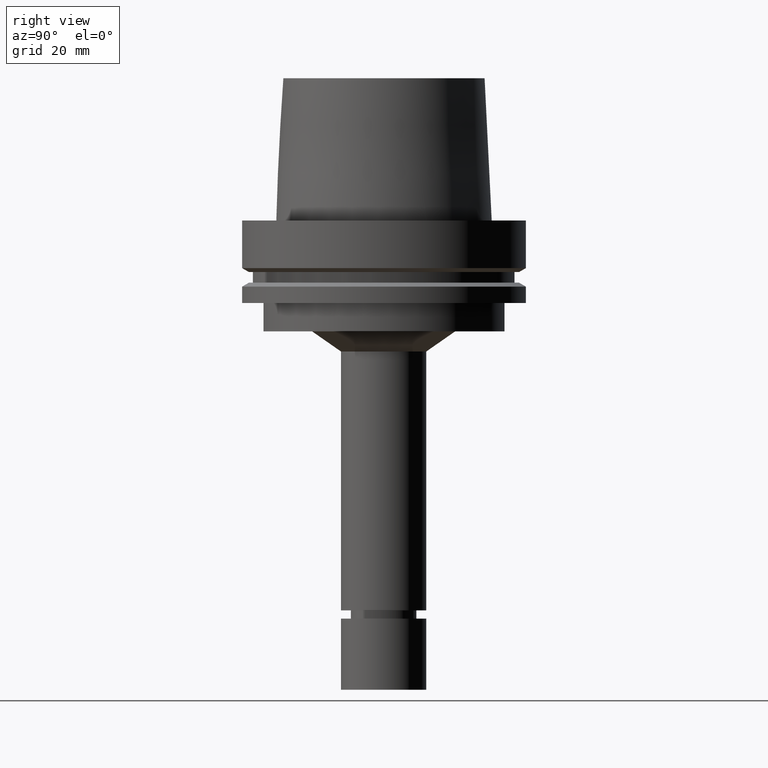
[diagram: clean part render]
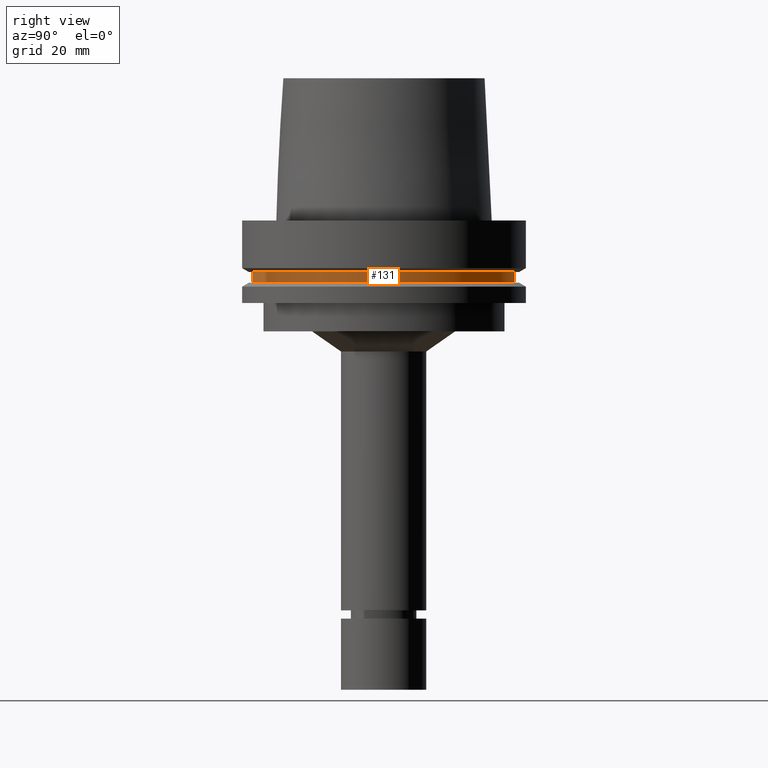
[diagram: same view with one face highlighted and labeled with its STEP entity id]
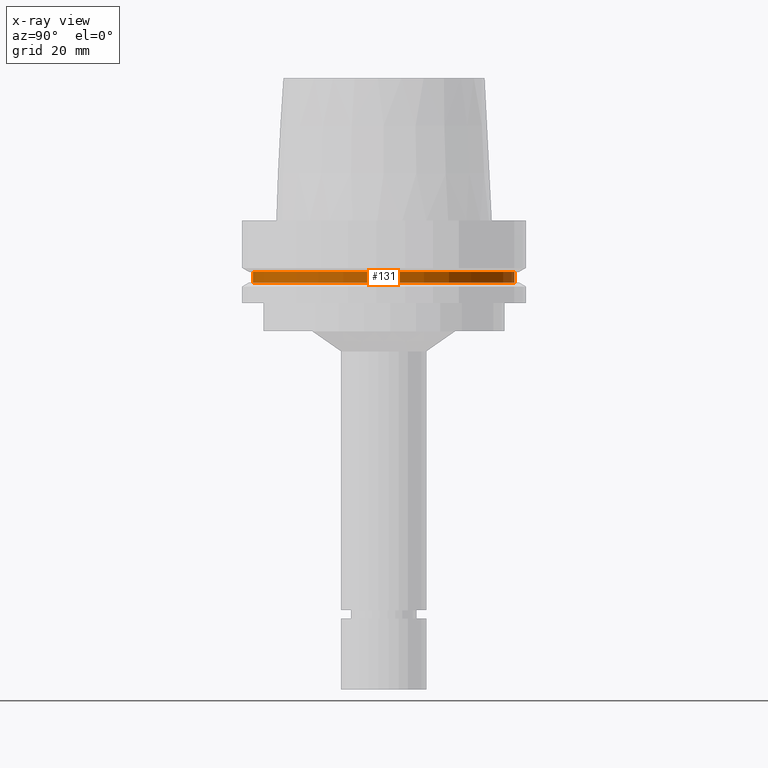
[diagram: x-ray of the same camera — body ghosted, the highlighted face saturated]
A machine part, right view. The second image highlights one B-rep face of the part: STEP entity #131.
The next image is the same camera in x-ray: the body ghosted, the highlighted face saturated — about 0% of this face is hidden behind the body in this view.
In plain terms, the highlighted cylindrical surface (bore or boss wall) has radius 46 mm, axis along (0, 0, -1).
Its self-contained STEP definition (entity closure, byte-faithful):
#131=ADVANCED_FACE('Unnamed[1]',(#298,#299),#300,.T.);
#162=EDGE_CURVE('Unnamed[1]',#346,#346,#347,.T.);
#179=EDGE_CURVE('Unnamed[1]',#372,#372,#373,.T.);
#298=FACE_BOUND('',#516,.T.);
#299=FACE_BOUND('',#517,.T.);
#300=CYLINDRICAL_SURFACE('',#518,46.0);
#346=VERTEX_POINT('',#575);
#347=CIRCLE('',#576,46.0);
#372=VERTEX_POINT('',#608);
#373=CIRCLE('',#609,46.0);
#516=EDGE_LOOP('',(#739));
#517=EDGE_LOOP('',(#740));
#518=AXIS2_PLACEMENT_3D('',#741,#742,#743);
#575=CARTESIAN_POINT('',(1.10983616172729E-015,46.0,-18.125));
#576=AXIS2_PLACEMENT_3D('',#792,#793,#794);
#608=CARTESIAN_POINT('',(1.33945743656742E-015,46.0,-21.875));
#609=AXIS2_PLACEMENT_3D('',#821,#822,#823);
#739=ORIENTED_EDGE('',*,*,#179,.F.);
#740=ORIENTED_EDGE('',*,*,#162,.T.);
#741=CARTESIAN_POINT('',(1.22464679914735E-015,2.44929359829471E-015,-20.0));
#742=DIRECTION('',(6.12323399573677E-017,1.22464679914735E-016,-1.0));
#743=DIRECTION('',(-1.23259516440783E-032,1.0,1.22464679914735E-016));
#792=CARTESIAN_POINT('',(1.10983616172729E-015,2.21967232345458E-015,-18.125));
#793=DIRECTION('',(6.12323399573677E-017,1.22464679914735E-016,-1.0));
#794=DIRECTION('',(-1.23259516440783E-032,1.0,1.22464679914735E-016));
#821=CARTESIAN_POINT('',(1.33945743656742E-015,2.67891487313483E-015,-21.875));
#822=DIRECTION('',(6.12323399573677E-017,1.22464679914735E-016,-1.0));
#823=DIRECTION('',(-1.23259516440783E-032,1.0,1.22464679914735E-016));